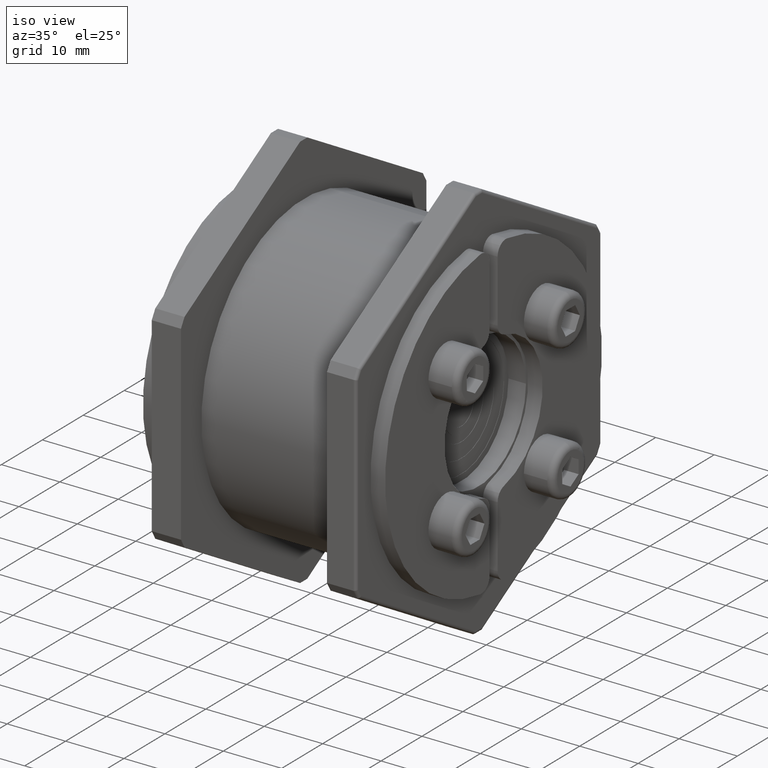
[diagram: clean part render]
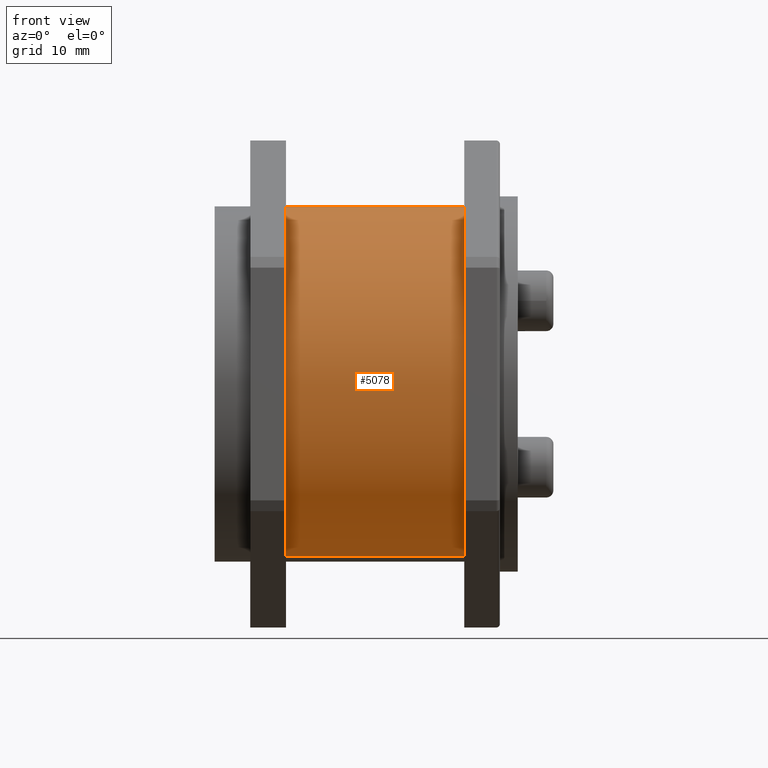
[diagram: tour spotlight — one face highlighted and labeled with its STEP entity id]
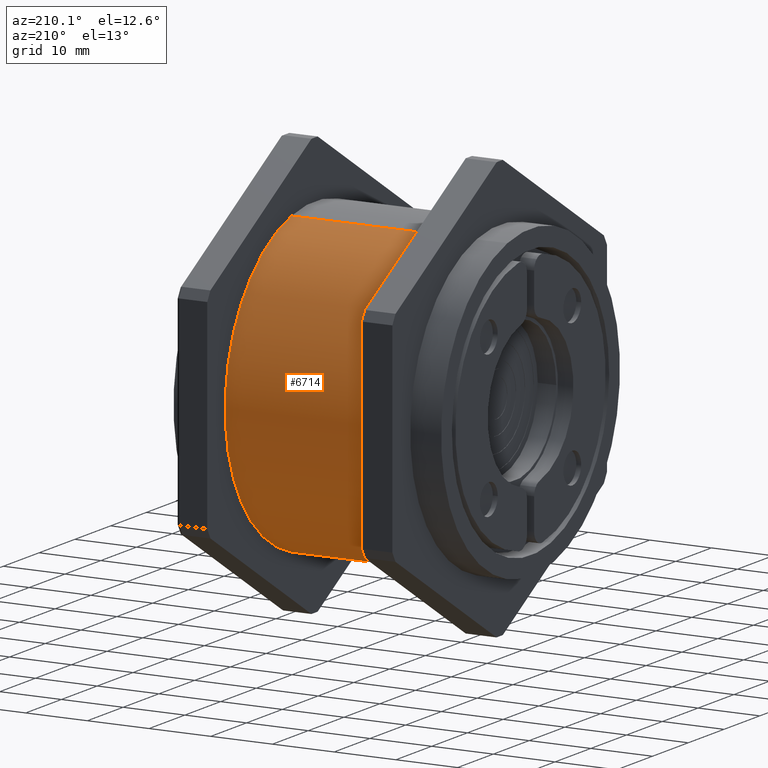
[diagram: tour spotlight — one face highlighted and labeled with its STEP entity id]
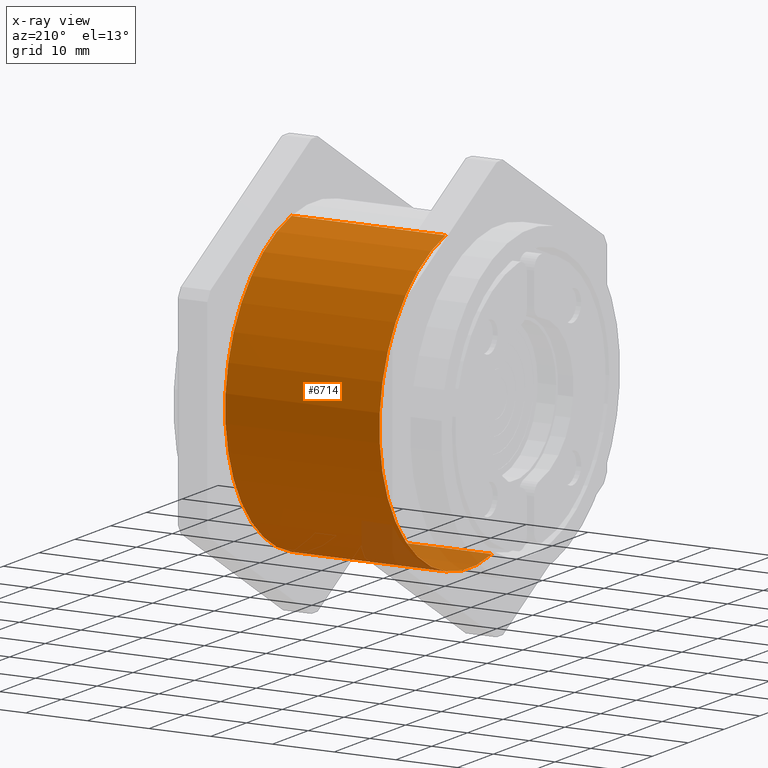
[diagram: x-ray of the same camera — body ghosted, this tour face saturated]
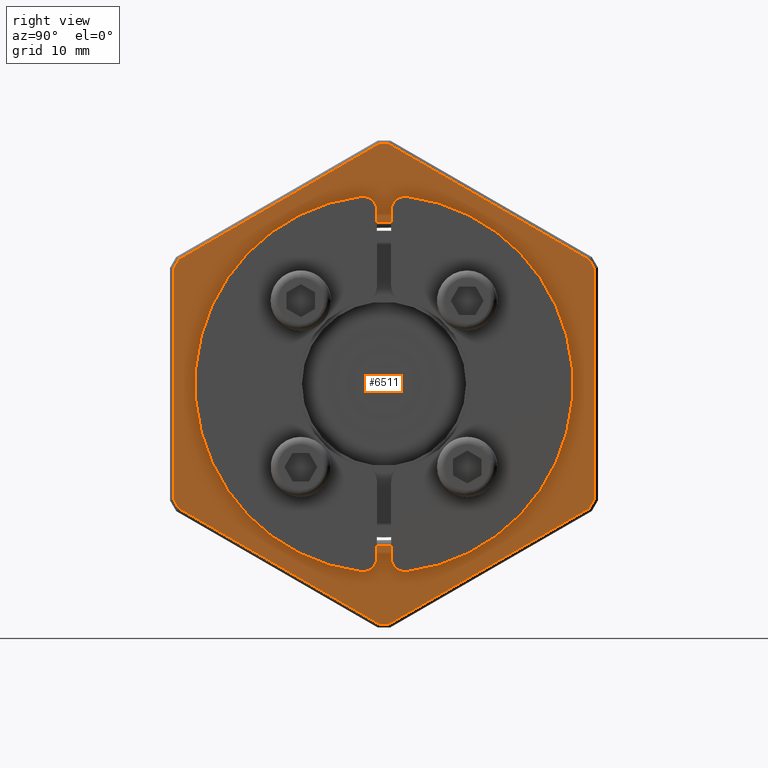
[diagram: tour spotlight — one face highlighted and labeled with its STEP entity id]
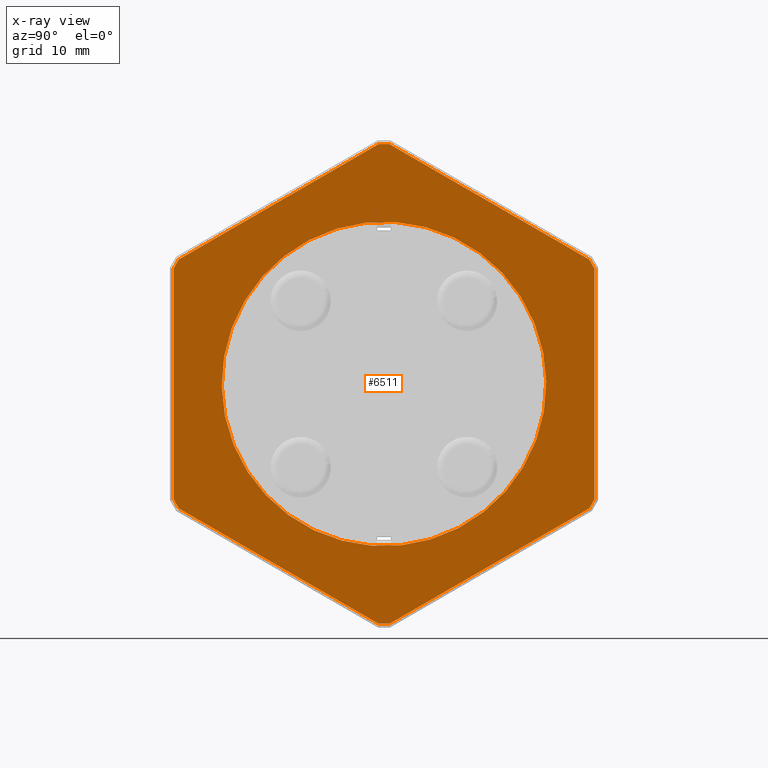
[diagram: x-ray of the same camera — body ghosted, this tour face saturated]
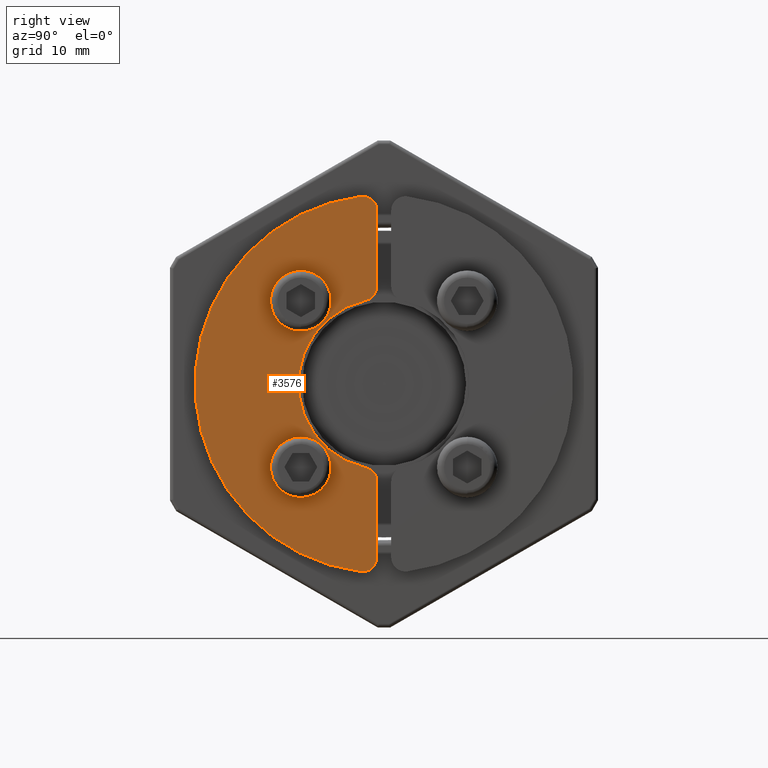
[diagram: tour spotlight — one face highlighted and labeled with its STEP entity id]
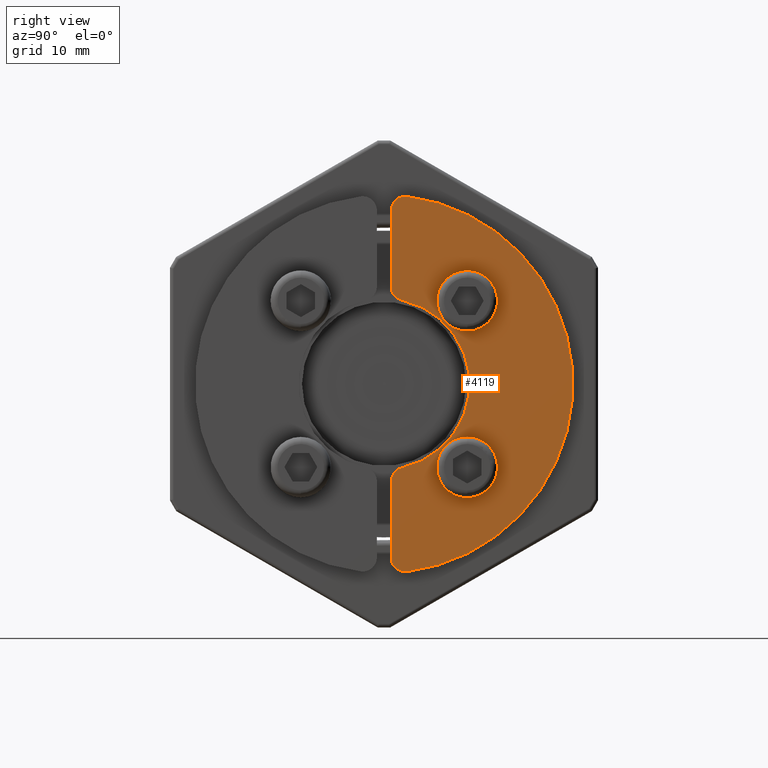
[diagram: tour spotlight — one face highlighted and labeled with its STEP entity id]
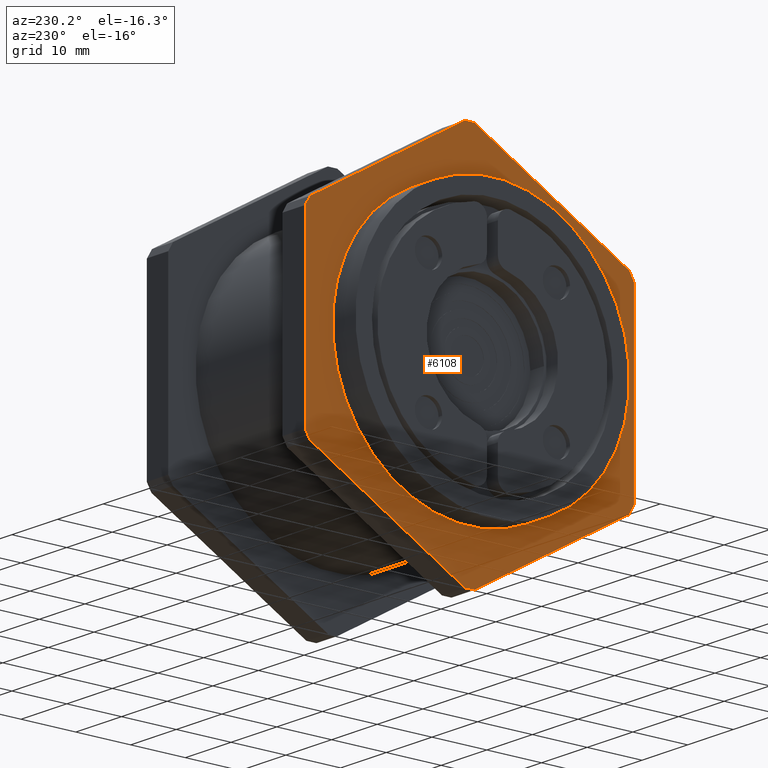
[diagram: tour spotlight — one face highlighted and labeled with its STEP entity id]
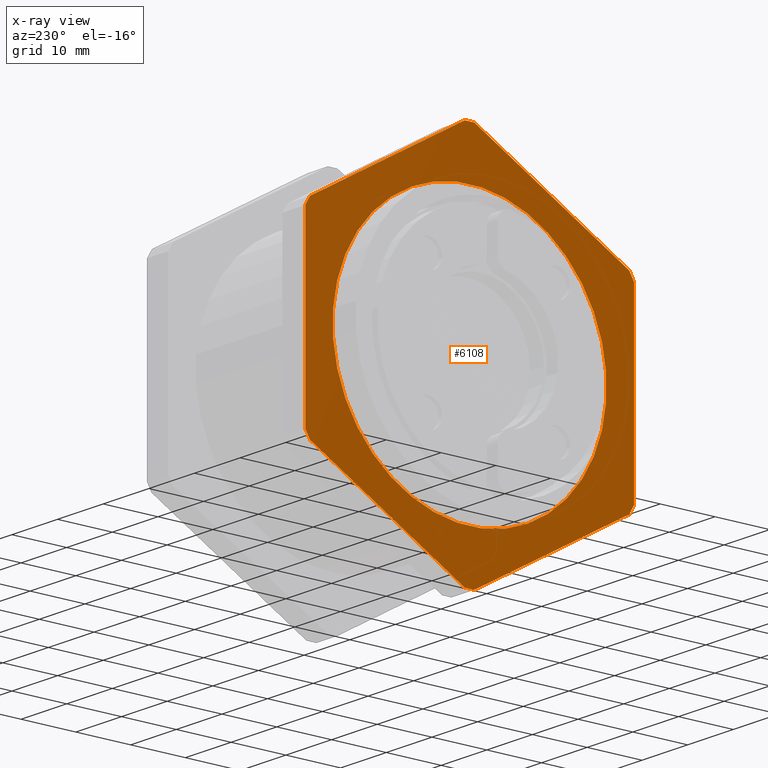
[diagram: x-ray of the same camera — body ghosted, this tour face saturated]
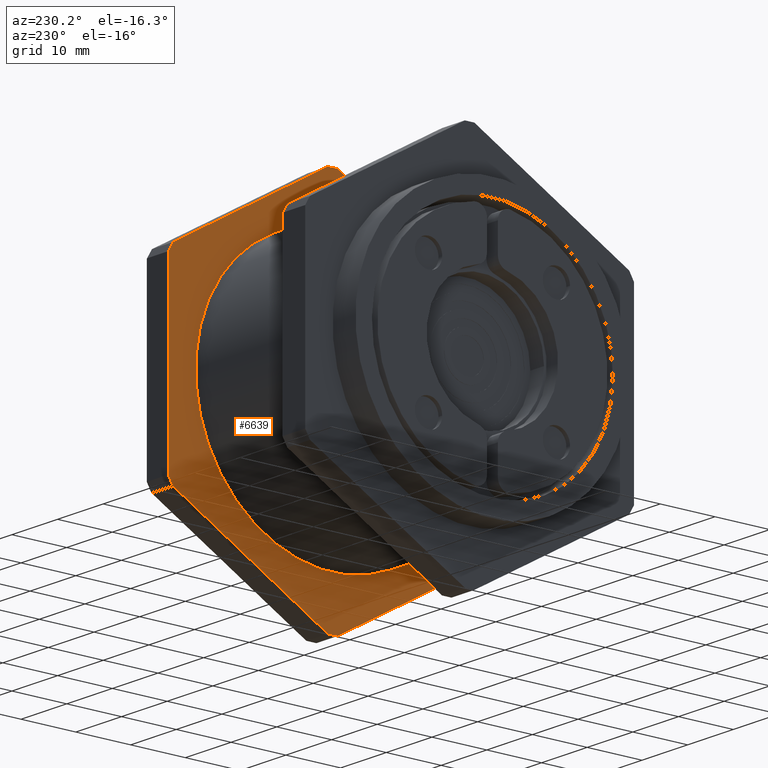
[diagram: tour spotlight — one face highlighted and labeled with its STEP entity id]
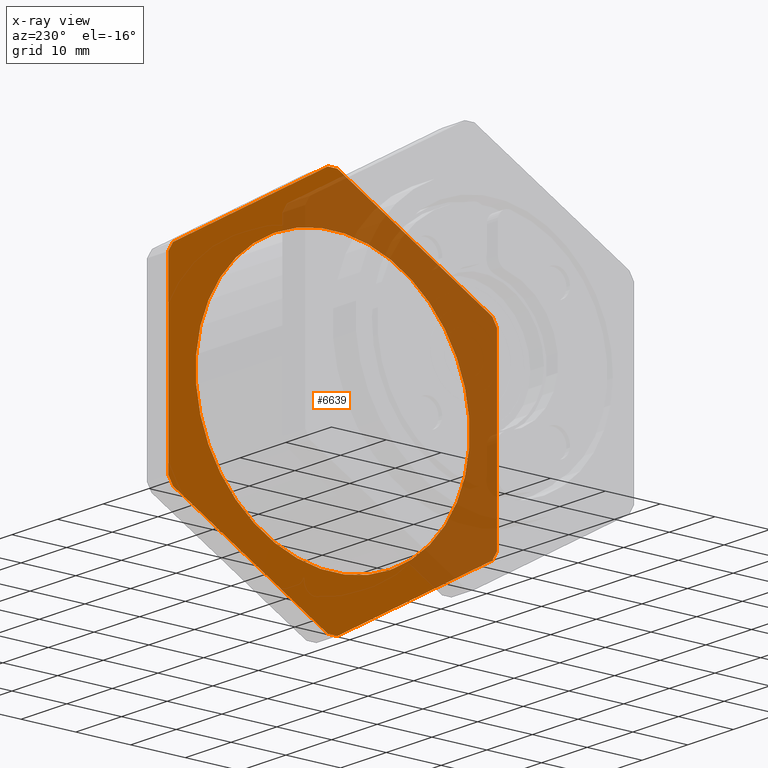
[diagram: x-ray of the same camera — body ghosted, this tour face saturated]
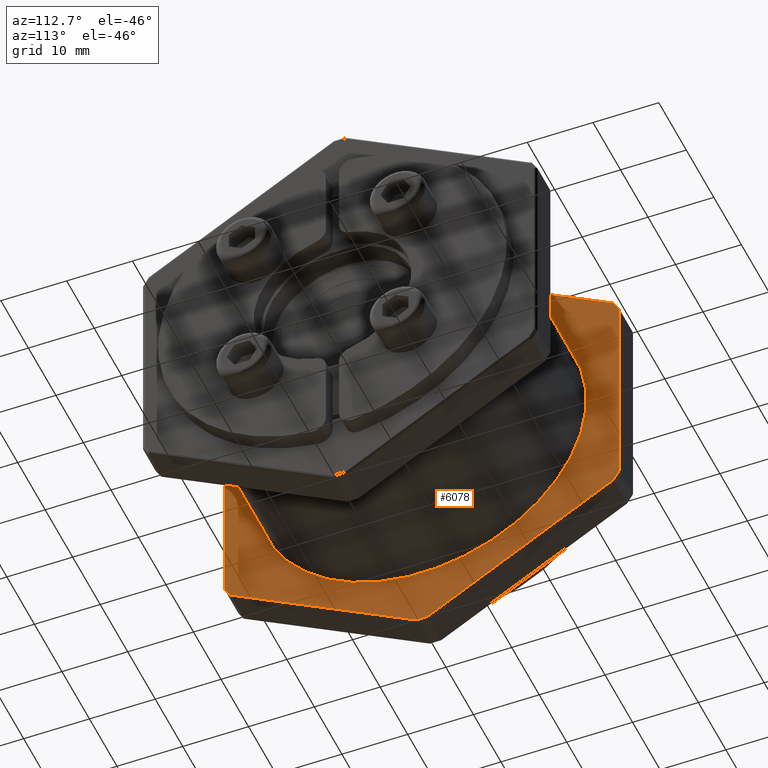
[diagram: tour spotlight — one face highlighted and labeled with its STEP entity id]
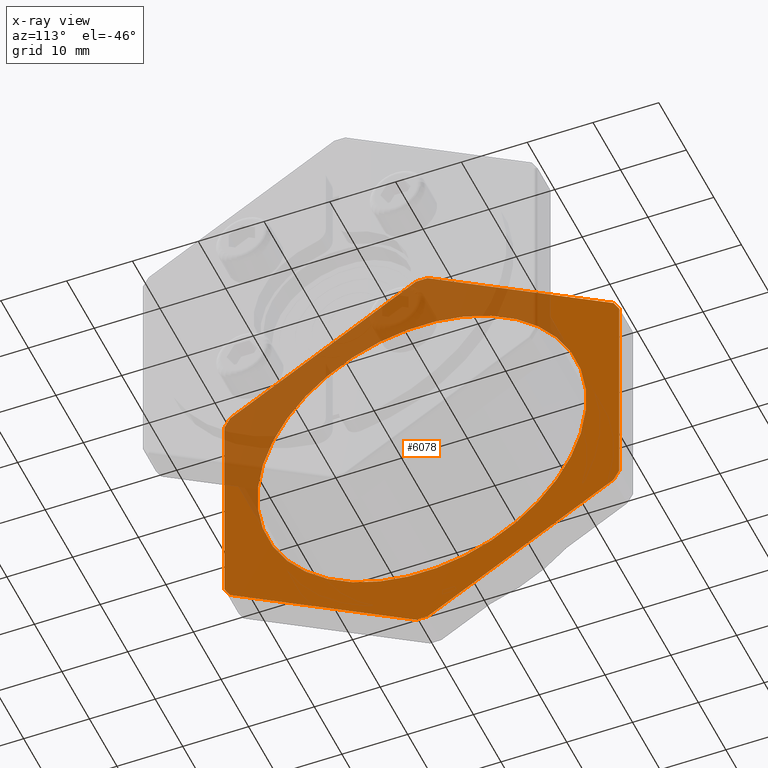
[diagram: x-ray of the same camera — body ghosted, this tour face saturated]
A machine part: a face-by-face anatomy tour. The part has 227 B-rep faces; the first image is the clean iso view, then the 8 largest visible faces are spotlighted one at a time (largest first), each with its STEP entity span.

Face 1 — front view, entity #5078. In plain terms, the highlighted cylindrical surface (partial cylindrical patch) has radius 25 mm, axis along (-1, 0, 0).
Definition (entity closure, byte-faithful):
#5037=CARTESIAN_POINT('',(0.0,0.0,5.0));
#5038=DIRECTION('',(0.0,0.0,1.0));
#5039=DIRECTION('',(-1.0,0.0,0.0));
#5040=AXIS2_PLACEMENT_3D('',#5037,#5038,#5039);
#5041=CYLINDRICAL_SURFACE('',#5040,25.0);
#5042=CARTESIAN_POINT('',(-25.0,3.061516E-015,5.0));
#5043=VERTEX_POINT('',#5042);
#5044=CARTESIAN_POINT('',(-25.0,3.061516E-015,30.0));
#5045=VERTEX_POINT('',#5044);
#5046=CARTESIAN_POINT('',(-25.0,3.061516E-015,5.0));
#5047=DIRECTION('',(0.0,0.0,1.0));
#5048=VECTOR('',#5047,25.0);
#5049=LINE('',#5046,#5048);
#5050=EDGE_CURVE('',#5043,#5045,#5049,.T.);
#5051=ORIENTED_EDGE('',*,*,#5050,.F.);
#5052=CARTESIAN_POINT('',(25.0,3.061516E-015,5.0));
#5053=VERTEX_POINT('',#5052);
#5054=CARTESIAN_POINT('',(0.0,0.0,5.0));
#5055=DIRECTION('',(0.0,0.0,-1.0));
#5056=DIRECTION('',(-1.0,0.0,0.0));
#5057=AXIS2_PLACEMENT_3D('',#5054,#5055,#5056);
#5058=CIRCLE('',#5057,25.0);
#5059=EDGE_CURVE('',#5053,#5043,#5058,.T.);
#5060=ORIENTED_EDGE('',*,*,#5059,.F.);
#5061=CARTESIAN_POINT('',(25.0,3.061516E-015,30.0));
#5062=VERTEX_POINT('',#5061);
#5063=CARTESIAN_POINT('',(25.0,3.061516E-015,30.0));
#5064=DIRECTION('',(0.0,0.0,-1.0));
#5065=VECTOR('',#5064,25.0);
#5066=LINE('',#5063,#5065);
#5067=EDGE_CURVE('',#5062,#5053,#5066,.T.);
#5068=ORIENTED_EDGE('',*,*,#5067,.F.);
#5069=CARTESIAN_POINT('',(0.0,0.0,30.0));
#5070=DIRECTION('',(0.0,0.0,-1.0));
#5071=DIRECTION('',(-1.0,0.0,0.0));
#5072=AXIS2_PLACEMENT_3D('',#5069,#5070,#5071);
#5073=CIRCLE('',#5072,25.0);
#5074=EDGE_CURVE('',#5062,#5045,#5073,.T.);
#5075=ORIENTED_EDGE('',*,*,#5074,.T.);
#5076=EDGE_LOOP('',(#5051,#5060,#5068,#5075));
#5077=FACE_OUTER_BOUND('',#5076,.T.);
#5078=ADVANCED_FACE('',(#5077),#5041,.T.);

Face 2 — auxiliary view, entity #6714. An x-ray twin of the same camera follows (body ghosted, this face saturated) — the face is partly hidden behind the body. In plain terms, the highlighted cylindrical surface (partial cylindrical patch) has radius 25 mm, axis along (-1, 0, 0).
Definition (entity closure, byte-faithful):
#5042=CARTESIAN_POINT('',(-25.0,3.061516E-015,5.0));
#5043=VERTEX_POINT('',#5042);
#5044=CARTESIAN_POINT('',(-25.0,3.061516E-015,30.0));
#5045=VERTEX_POINT('',#5044);
#5046=CARTESIAN_POINT('',(-25.0,3.061516E-015,5.0));
#5047=DIRECTION('',(0.0,0.0,1.0));
#5048=VECTOR('',#5047,25.0);
#5049=LINE('',#5046,#5048);
#5050=EDGE_CURVE('',#5043,#5045,#5049,.T.);
#5052=CARTESIAN_POINT('',(25.0,3.061516E-015,5.0));
#5053=VERTEX_POINT('',#5052);
#5061=CARTESIAN_POINT('',(25.0,3.061516E-015,30.0));
#5062=VERTEX_POINT('',#5061);
#5063=CARTESIAN_POINT('',(25.0,3.061516E-015,30.0));
#5064=DIRECTION('',(0.0,0.0,-1.0));
#5065=VECTOR('',#5064,25.0);
#5066=LINE('',#5063,#5065);
#5067=EDGE_CURVE('',#5062,#5053,#5066,.T.);
#6069=CARTESIAN_POINT('',(0.0,0.0,30.0));
#6070=DIRECTION('',(0.0,0.0,-1.0));
#6071=DIRECTION('',(-1.0,0.0,0.0));
#6072=AXIS2_PLACEMENT_3D('',#6069,#6070,#6071);
#6073=CIRCLE('',#6072,25.0);
#6074=EDGE_CURVE('',#5045,#5062,#6073,.T.);
#6630=CARTESIAN_POINT('',(0.0,0.0,5.0));
#6631=DIRECTION('',(0.0,0.0,-1.0));
#6632=DIRECTION('',(-1.0,0.0,0.0));
#6633=AXIS2_PLACEMENT_3D('',#6630,#6631,#6632);
#6634=CIRCLE('',#6633,25.0);
#6635=EDGE_CURVE('',#5043,#5053,#6634,.T.);
#6703=CARTESIAN_POINT('',(0.0,0.0,5.0));
#6704=DIRECTION('',(0.0,0.0,1.0));
#6705=DIRECTION('',(-1.0,0.0,0.0));
#6706=AXIS2_PLACEMENT_3D('',#6703,#6704,#6705);
#6707=CYLINDRICAL_SURFACE('',#6706,25.0);
#6708=ORIENTED_EDGE('',*,*,#5050,.T.);
#6709=ORIENTED_EDGE('',*,*,#6074,.T.);
#6710=ORIENTED_EDGE('',*,*,#5067,.T.);
#6711=ORIENTED_EDGE('',*,*,#6635,.F.);
#6712=EDGE_LOOP('',(#6708,#6709,#6710,#6711));
#6713=FACE_OUTER_BOUND('',#6712,.T.);
#6714=ADVANCED_FACE('',(#6713),#6707,.T.);

Face 3 — right view, entity #6511. An x-ray twin of the same camera follows (body ghosted, this face saturated) — the face is partly hidden behind the body. In plain terms, the highlighted planar face has unit normal (-1, 0, 0).
Definition (entity closure, byte-faithful):
#5126=CARTESIAN_POINT('',(22.750000000000004,-2.785979E-015,0.0));
#5127=VERTEX_POINT('',#5126);
#5136=CARTESIAN_POINT('',(-22.750000000000004,2.785979E-015,0.0));
#5137=VERTEX_POINT('',#5136);
#5145=CARTESIAN_POINT('',(0.0,0.0,0.0));
#5146=DIRECTION('',(0.0,0.0,-1.0));
#5147=DIRECTION('',(-1.0,0.0,0.0));
#5148=AXIS2_PLACEMENT_3D('',#5145,#5146,#5147);
#5149=CIRCLE('',#5148,22.750000000000004);
#5150=EDGE_CURVE('',#5137,#5127,#5149,.T.);
#5170=CARTESIAN_POINT('',(7.999829444458416,-32.684194516768883,0.0));
#5171=VERTEX_POINT('',#5170);
#5179=CARTESIAN_POINT('',(9.414042999407240,-32.305257107098228,0.0));
#5180=VERTEX_POINT('',#5179);
#5181=CARTESIAN_POINT('',(7.999829444458416,-32.684194516768883,0.0));
#5182=DIRECTION('',(0.965925821218216,0.258819064027198,0.0));
#5183=VECTOR('',#5182,1.464101615137726);
#5184=LINE('',#5181,#5183);
#5185=EDGE_CURVE('',#5171,#5180,#5184,.T.);
#5250=CARTESIAN_POINT('',(-24.305428372225780,-23.270152691937604,0.0));
#5251=VERTEX_POINT('',#5250);
#5259=CARTESIAN_POINT('',(-23.270152171532281,-24.305428852064281,0.0));
#5260=VERTEX_POINT('',#5259);
#5261=CARTESIAN_POINT('',(-24.305428372225780,-23.270152691937604,0.0));
#5262=DIRECTION('',(0.707106795040374,-0.707106767332720,0.0));
#5263=VECTOR('',#5262,1.464101615137762);
#5264=LINE('',#5261,#5263);
#5265=EDGE_CURVE('',#5251,#5260,#5264,.T.);
#5330=CARTESIAN_POINT('',(-32.305257907974763,9.414042165532338,0.0));
#5331=VERTEX_POINT('',#5330);
#5339=CARTESIAN_POINT('',(-32.684195262230126,7.999828595734990,0.0));
#5340=VERTEX_POINT('',#5339);
#5341=CARTESIAN_POINT('',(-32.305257907974763,9.414042165532338,0.0));
#5342=DIRECTION('',(-0.258819026177843,-0.965925831359920,0.0));
#5343=VECTOR('',#5342,1.464101615137766);
#5344=LINE('',#5341,#5343);
#5345=EDGE_CURVE('',#5331,#5340,#5344,.T.);
#5410=CARTESIAN_POINT('',(-7.999829627039593,32.684195198171018,0.0));
#5411=VERTEX_POINT('',#5410);
#5419=CARTESIAN_POINT('',(-9.414043181988443,32.305257788500356,0.0));
#5420=VERTEX_POINT('',#5419);
#5421=CARTESIAN_POINT('',(-7.999829627039593,32.684195198171018,0.0));
#5422=DIRECTION('',(-0.965925821218216,-0.258819064027198,0.0));
#5423=VECTOR('',#5422,1.464101615137753);
#5424=LINE('',#5421,#5423);
#5425=EDGE_CURVE('',#5411,#5420,#5424,.T.);
#5490=CARTESIAN_POINT('',(24.305428189644619,23.270153373339724,0.0));
#5491=VERTEX_POINT('',#5490);
#5499=CARTESIAN_POINT('',(23.270151988951106,24.305429533466409,0.0));
#5500=VERTEX_POINT('',#5499);
#5501=CARTESIAN_POINT('',(24.305428189644619,23.270153373339724,0.0));
#5502=DIRECTION('',(-0.707106795040377,0.707106767332718,0.0));
#5503=VECTOR('',#5502,1.464101615137777);
#5504=LINE('',#5501,#5503);
#5505=EDGE_CURVE('',#5491,#5500,#5504,.T.);
#5570=CARTESIAN_POINT('',(32.305257725393588,-9.414041484130220,0.0));
#5571=VERTEX_POINT('',#5570);
#5579=CARTESIAN_POINT('',(32.684195079648944,-7.999827914332871,0.0));
#5580=VERTEX_POINT('',#5579);
#5581=CARTESIAN_POINT('',(32.305257725393588,-9.414041484130220,0.0));
#5582=DIRECTION('',(0.258819026177838,0.965925831359922,0.0));
#5583=VECTOR('',#5582,1.464101615137764);
#5584=LINE('',#5581,#5583);
#5585=EDGE_CURVE('',#5571,#5580,#5584,.T.);
#6134=CARTESIAN_POINT('',(9.414042999407240,-32.305257107098228,0.0));
#6135=DIRECTION('',(0.707106767332722,0.707106795040373,0.0));
#6136=VECTOR('',#6135,32.373066958946424);
#6137=LINE('',#6134,#6136);
#6138=EDGE_CURVE('',#5180,#5571,#6137,.T.);
#6168=CARTESIAN_POINT('',(32.684195079648944,-7.999827914332871,0.0));
#6169=DIRECTION('',(-0.258819064027198,0.965925821218216,0.0));
#6170=VECTOR('',#6169,32.373066958946396);
#6171=LINE('',#6168,#6170);
#6172=EDGE_CURVE('',#5580,#5491,#6171,.T.);
#6202=CARTESIAN_POINT('',(23.270151988951106,24.305429533466409,0.0));
#6203=DIRECTION('',(-0.965925831359920,0.258819026177843,0.0));
#6204=VECTOR('',#6203,32.373066958946431);
#6205=LINE('',#6202,#6204);
#6206=EDGE_CURVE('',#5500,#5411,#6205,.T.);
#6236=CARTESIAN_POINT('',(-9.414043181988443,32.305257788500356,0.0));
#6237=DIRECTION('',(-0.707106767332721,-0.707106795040374,0.0));
#6238=VECTOR('',#6237,32.373066958946417);
#6239=LINE('',#6236,#6238);
#6240=EDGE_CURVE('',#5420,#5331,#6239,.T.);
#6270=CARTESIAN_POINT('',(-32.684195262230126,7.999828595734990,0.0));
#6271=DIRECTION('',(0.258819064027199,-0.965925821218216,0.0));
#6272=VECTOR('',#6271,32.373066958946403);
#6273=LINE('',#6270,#6272);
#6274=EDGE_CURVE('',#5340,#5251,#6273,.T.);
#6304=CARTESIAN_POINT('',(-23.270152171532281,-24.305428852064281,0.0));
#6305=DIRECTION('',(0.965925831359920,-0.258819026177842,0.0));
#6306=VECTOR('',#6305,32.373066958946431);
#6307=LINE('',#6304,#6306);
#6308=EDGE_CURVE('',#5260,#5171,#6307,.T.);
#6482=CARTESIAN_POINT('',(-0.000000091290589,0.000000340701068,0.0));
#6483=DIRECTION('',(0.0,0.0,1.0));
#6484=DIRECTION('',(1.0,0.0,0.0));
#6485=AXIS2_PLACEMENT_3D('',#6482,#6483,#6484);
#6486=PLANE('',#6485);
#6487=ORIENTED_EDGE('',*,*,#6138,.F.);
#6488=ORIENTED_EDGE('',*,*,#5185,.F.);
#6489=ORIENTED_EDGE('',*,*,#6308,.F.);
#6490=ORIENTED_EDGE('',*,*,#5265,.F.);
#6491=ORIENTED_EDGE('',*,*,#6274,.F.);
#6492=ORIENTED_EDGE('',*,*,#5345,.F.);
#6493=ORIENTED_EDGE('',*,*,#6240,.F.);
#6494=ORIENTED_EDGE('',*,*,#5425,.F.);
#6495=ORIENTED_EDGE('',*,*,#6206,.F.);
#6496=ORIENTED_EDGE('',*,*,#5505,.F.);
#6497=ORIENTED_EDGE('',*,*,#6172,.F.);
#6498=ORIENTED_EDGE('',*,*,#5585,.F.);
#6499=EDGE_LOOP('',(#6487,#6488,#6489,#6490,#6491,#6492,#6493,#6494,#6495,#6496,#6497,#6498));
#6500=FACE_OUTER_BOUND('',#6499,.T.);
#6501=CARTESIAN_POINT('',(0.0,0.0,0.0));
#6502=DIRECTION('',(0.0,0.0,-1.0));
#6503=DIRECTION('',(-1.0,0.0,0.0));
#6504=AXIS2_PLACEMENT_3D('',#6501,#6502,#6503);
#6505=CIRCLE('',#6504,22.750000000000004);
#6506=EDGE_CURVE('',#5127,#5137,#6505,.T.);
#6507=ORIENTED_EDGE('',*,*,#6506,.F.);
#6508=ORIENTED_EDGE('',*,*,#5150,.F.);
#6509=EDGE_LOOP('',(#6507,#6508));
#6510=FACE_BOUND('',#6509,.T.);
#6511=ADVANCED_FACE('',(#6500,#6510),#6486,.F.);

Face 4 — right view, entity #3576. In plain terms, the highlighted planar face has unit normal (1, 0, 0).
Definition (entity closure, byte-faithful):
#1158=CARTESIAN_POINT('',(21.250000000000000,-1.675197357786332,-25.813931186104444));
#1159=VERTEX_POINT('',#1158);
#1175=CARTESIAN_POINT('',(21.250000000000000,-1.000000000000003,-24.315632831575655));
#1176=VERTEX_POINT('',#1175);
#1183=CARTESIAN_POINT('',(21.250000000000000,-3.000000000000003,-24.315632831575655));
#1184=DIRECTION('',(-1.0,0.0,0.0));
#1185=DIRECTION('',(0.0,0.662401321106836,-0.749149177264394));
#1186=AXIS2_PLACEMENT_3D('',#1183,#1184,#1185);
#1187=CIRCLE('',#1186,2.0);
#1188=EDGE_CURVE('',#1176,#1159,#1187,.T.);
#1200=CARTESIAN_POINT('',(21.250000000000000,-1.675197357786327,25.813931186104448));
#1201=VERTEX_POINT('',#1200);
#1217=CARTESIAN_POINT('',(21.250000000000000,-3.244897959183671,26.300582450479798));
#1218=VERTEX_POINT('',#1217);
#1225=CARTESIAN_POINT('',(21.250000000000000,-2.999999999999998,24.315632831575659));
#1226=DIRECTION('',(-1.0,0.0,0.0));
#1227=DIRECTION('',(0.0,0.662401321106836,0.749149177264394));
#1228=AXIS2_PLACEMENT_3D('',#1225,#1226,#1227);
#1229=CIRCLE('',#1228,2.0);
#1230=EDGE_CURVE('',#1218,#1201,#1229,.T.);
#1242=CARTESIAN_POINT('',(21.250000000000000,-1.441612555052040,12.421227990121327));
#1243=VERTEX_POINT('',#1242);
#1259=CARTESIAN_POINT('',(21.250000000000000,-0.999999999999998,13.674794331177340));
#1260=VERTEX_POINT('',#1259);
#1267=CARTESIAN_POINT('',(21.250000000000000,-3.000000000000002,13.674794331177342));
#1268=DIRECTION('',(-1.000000000000000,0.0,0.0));
#1269=DIRECTION('',(0.0,0.779193722473981,-0.626783170528008));
#1270=AXIS2_PLACEMENT_3D('',#1267,#1268,#1269);
#1271=CIRCLE('',#1270,2.0);
#1272=EDGE_CURVE('',#1260,#1243,#1271,.T.);
#1284=CARTESIAN_POINT('',(21.250000000000000,-1.441612555052043,-12.421227990121329));
#1285=VERTEX_POINT('',#1284);
#1301=CARTESIAN_POINT('',(21.250000000000000,-2.571428571428573,-11.721252283866296));
#1302=VERTEX_POINT('',#1301);
#1309=CARTESIAN_POINT('',(21.250000000000000,-3.000000000000002,-13.674794331177345));
#1310=DIRECTION('',(-1.000000000000000,0.0,0.0));
#1311=DIRECTION('',(0.0,0.779193722473980,0.626783170528009));
#1312=AXIS2_PLACEMENT_3D('',#1309,#1310,#1311);
#1313=CIRCLE('',#1312,2.000000000000000);
#1314=EDGE_CURVE('',#1302,#1285,#1313,.T.);
#1742=CARTESIAN_POINT('',(21.250000000000000,-15.917261889578032,11.667261889578040));
#1743=VERTEX_POINT('',#1742);
#1752=CARTESIAN_POINT('',(21.250000000000000,-7.417261889578033,11.667261889578038));
#1753=VERTEX_POINT('',#1752);
#1754=CARTESIAN_POINT('',(21.250000000000000,-11.667261889578032,11.667261889578038));
#1755=DIRECTION('',(-1.0,0.0,0.0));
#1756=DIRECTION('',(0.0,-1.0,0.0));
#1757=AXIS2_PLACEMENT_3D('',#1754,#1755,#1756);
#1758=CIRCLE('',#1757,4.250000000000000);
#1759=EDGE_CURVE('',#1753,#1743,#1758,.T.);
#1845=CARTESIAN_POINT('',(21.250000000000000,-11.667261889578040,-15.917261889578032));
#1846=VERTEX_POINT('',#1845);
#1855=CARTESIAN_POINT('',(21.250000000000000,-11.667261889578036,-7.417261889578034));
#1856=VERTEX_POINT('',#1855);
#1857=CARTESIAN_POINT('',(21.250000000000000,-11.667261889578038,-11.667261889578032));
#1858=DIRECTION('',(-1.0,0.0,0.0));
#1859=DIRECTION('',(0.0,0.0,-1.0));
#1860=AXIS2_PLACEMENT_3D('',#1857,#1858,#1859);
#1861=CIRCLE('',#1860,4.250000000000000);
#1862=EDGE_CURVE('',#1856,#1846,#1861,.T.);
#2156=CARTESIAN_POINT('',(21.250000000000000,-11.667261889578038,-11.667261889578032));
#2157=DIRECTION('',(-1.0,0.0,0.0));
#2158=DIRECTION('',(0.0,0.0,-1.0));
#2159=AXIS2_PLACEMENT_3D('',#2156,#2157,#2158);
#2160=CIRCLE('',#2159,4.250000000000000);
#2161=EDGE_CURVE('',#1846,#1856,#2160,.T.);
#2260=CARTESIAN_POINT('',(21.250000000000000,-11.667261889578032,11.667261889578038));
#2261=DIRECTION('',(-1.0,0.0,0.0));
#2262=DIRECTION('',(0.0,-1.0,0.0));
#2263=AXIS2_PLACEMENT_3D('',#2260,#2261,#2262);
#2264=CIRCLE('',#2263,4.250000000000000);
#2265=EDGE_CURVE('',#1743,#1753,#2264,.T.);
#3453=CARTESIAN_POINT('',(21.250000000000000,-1.000000000000002,-13.674794331177345));
#3454=VERTEX_POINT('',#3453);
#3455=CARTESIAN_POINT('',(21.250000000000000,-3.000000000000002,-13.674794331177345));
#3456=DIRECTION('',(-1.000000000000000,0.0,0.0));
#3457=DIRECTION('',(0.0,0.779193722473980,0.626783170528009));
#3458=AXIS2_PLACEMENT_3D('',#3455,#3456,#3457);
#3459=CIRCLE('',#3458,2.000000000000000);
#3460=EDGE_CURVE('',#1285,#3454,#3459,.T.);
#3486=CARTESIAN_POINT('',(21.250000000000000,-1.000000000000002,-13.674794331177345));
#3487=DIRECTION('',(0.0,0.0,-1.0));
#3488=VECTOR('',#3487,10.640838500398310);
#3489=LINE('',#3486,#3488);
#3490=EDGE_CURVE('',#3454,#1176,#3489,.T.);
#3508=CARTESIAN_POINT('',(21.250000000000000,-10.716555633308184,1.312356E-015));
#3509=DIRECTION('',(1.0,0.0,0.0));
#3510=DIRECTION('',(0.0,0.0,1.0));
#3511=AXIS2_PLACEMENT_3D('',#3508,#3509,#3510);
#3512=PLANE('',#3511);
#3513=ORIENTED_EDGE('',*,*,#1314,.F.);
#3514=CARTESIAN_POINT('',(21.250000000000000,-2.571428571428573,11.721252283866296));
#3515=VERTEX_POINT('',#3514);
#3516=CARTESIAN_POINT('',(21.250000000000000,0.0,0.0));
#3517=DIRECTION('',(1.000000000000000,0.0,0.0));
#3518=DIRECTION('',(0.0,0.083333333333333,-0.996521728591783));
#3519=AXIS2_PLACEMENT_3D('',#3516,#3517,#3518);
#3520=CIRCLE('',#3519,12.0);
#3521=EDGE_CURVE('',#3515,#1302,#3520,.T.);
#3522=ORIENTED_EDGE('',*,*,#3521,.F.);
#3523=CARTESIAN_POINT('',(21.250000000000000,-3.000000000000002,13.674794331177342));
#3524=DIRECTION('',(-1.000000000000000,0.0,0.0));
#3525=DIRECTION('',(0.0,0.779193722473981,-0.626783170528008));
#3526=AXIS2_PLACEMENT_3D('',#3523,#3524,#3525);
#3527=CIRCLE('',#3526,2.0);
#3528=EDGE_CURVE('',#1243,#3515,#3527,.T.);
#3529=ORIENTED_EDGE('',*,*,#3528,.F.);
#3530=ORIENTED_EDGE('',*,*,#1272,.F.);
#3531=CARTESIAN_POINT('',(21.250000000000000,-0.999999999999997,24.315632831575662));
#3532=VERTEX_POINT('',#3531);
#3533=CARTESIAN_POINT('',(21.250000000000000,-0.999999999999997,24.315632831575662));
#3534=DIRECTION('',(0.0,0.0,-1.0));
#3535=VECTOR('',#3534,10.640838500398322);
#3536=LINE('',#3533,#3535);
#3537=EDGE_CURVE('',#3532,#1260,#3536,.T.);
#3538=ORIENTED_EDGE('',*,*,#3537,.F.);
#3539=CARTESIAN_POINT('',(21.250000000000000,-2.999999999999998,24.315632831575659));
#3540=DIRECTION('',(-1.0,0.0,0.0));
#3541=DIRECTION('',(0.0,0.662401321106836,0.749149177264394));
#3542=AXIS2_PLACEMENT_3D('',#3539,#3540,#3541);
#3543=CIRCLE('',#3542,2.0);
#3544=EDGE_CURVE('',#1201,#3532,#3543,.T.);
#3545=ORIENTED_EDGE('',*,*,#3544,.F.);
#3546=ORIENTED_EDGE('',*,*,#1230,.F.);
#3547=CARTESIAN_POINT('',(21.250000000000000,-3.244897959183678,-26.300582450479794));
#3548=VERTEX_POINT('',#3547);
#3549=CARTESIAN_POINT('',(21.250000000000000,0.0,0.0));
#3550=DIRECTION('',(-1.0,0.0,0.0));
#3551=DIRECTION('',(0.0,-0.037735849056604,0.999287749197386));
#3552=AXIS2_PLACEMENT_3D('',#3549,#3550,#3551);
#3553=CIRCLE('',#3552,26.500000000000004);
#3554=EDGE_CURVE('',#3548,#1218,#3553,.T.);
#3555=ORIENTED_EDGE('',*,*,#3554,.F.);
#3556=CARTESIAN_POINT('',(21.250000000000000,-3.000000000000003,-24.315632831575655));
#3557=DIRECTION('',(-1.0,0.0,0.0));
#3558=DIRECTION('',(0.0,0.662401321106836,-0.749149177264394));
#3559=AXIS2_PLACEMENT_3D('',#3556,#3557,#3558);
#3560=CIRCLE('',#3559,2.0);
#3561=EDGE_CURVE('',#1159,#3548,#3560,.T.);
#3562=ORIENTED_EDGE('',*,*,#3561,.F.);
#3563=ORIENTED_EDGE('',*,*,#1188,.F.);
#3564=ORIENTED_EDGE('',*,*,#3490,.F.);
#3565=ORIENTED_EDGE('',*,*,#3460,.F.);
#3566=EDGE_LOOP('',(#3513,#3522,#3529,#3530,#3538,#3545,#3546,#3555,#3562,#3563,#3564,#3565));
#3567=FACE_OUTER_BOUND('',#3566,.T.);
#3568=ORIENTED_EDGE('',*,*,#1862,.T.);
#3569=ORIENTED_EDGE('',*,*,#2161,.T.);
#3570=EDGE_LOOP('',(#3568,#3569));
#3571=FACE_BOUND('',#3570,.T.);
#3572=ORIENTED_EDGE('',*,*,#1759,.T.);
#3573=ORIENTED_EDGE('',*,*,#2265,.T.);
#3574=EDGE_LOOP('',(#3572,#3573));
#3575=FACE_BOUND('',#3574,.T.);
#3576=ADVANCED_FACE('',(#3567,#3571,#3575),#3512,.T.);

Face 5 — right view, entity #4119. In plain terms, the highlighted planar face has unit normal (1, 0, 0).
Definition (entity closure, byte-faithful):
#822=CARTESIAN_POINT('',(21.250000000000000,1.675197357786330,25.813931186104448));
#823=VERTEX_POINT('',#822);
#839=CARTESIAN_POINT('',(21.250000000000000,1.0,24.315632831575659));
#840=VERTEX_POINT('',#839);
#847=CARTESIAN_POINT('',(21.250000000000000,3.000000000000000,24.315632831575659));
#848=DIRECTION('',(-1.0,0.0,0.0));
#849=DIRECTION('',(0.0,-0.662401321106836,0.749149177264394));
#850=AXIS2_PLACEMENT_3D('',#847,#848,#849);
#851=CIRCLE('',#850,2.0);
#852=EDGE_CURVE('',#840,#823,#851,.T.);
#864=CARTESIAN_POINT('',(21.250000000000000,1.675197357786329,-25.813931186104448));
#865=VERTEX_POINT('',#864);
#881=CARTESIAN_POINT('',(21.250000000000000,3.244897959183674,-26.300582450479794));
#882=VERTEX_POINT('',#881);
#889=CARTESIAN_POINT('',(21.250000000000000,3.000000000000000,-24.315632831575659));
#890=DIRECTION('',(-1.0,0.0,0.0));
#891=DIRECTION('',(0.0,-0.662401321106836,-0.749149177264394));
#892=AXIS2_PLACEMENT_3D('',#889,#890,#891);
#893=CIRCLE('',#892,2.0);
#894=EDGE_CURVE('',#882,#865,#893,.T.);
#906=CARTESIAN_POINT('',(21.250000000000000,1.441612555052042,-12.421227990121325));
#907=VERTEX_POINT('',#906);
#923=CARTESIAN_POINT('',(21.250000000000000,1.0,-13.674794331177340));
#924=VERTEX_POINT('',#923);
#931=CARTESIAN_POINT('',(21.250000000000000,3.000000000000003,-13.674794331177342));
#932=DIRECTION('',(-1.000000000000000,0.0,0.0));
#933=DIRECTION('',(0.0,-0.779193722473980,0.626783170528008));
#934=AXIS2_PLACEMENT_3D('',#931,#932,#933);
#935=CIRCLE('',#934,2.0);
#936=EDGE_CURVE('',#924,#907,#935,.T.);
#948=CARTESIAN_POINT('',(21.250000000000000,1.441612555052040,12.421227990121327));
#949=VERTEX_POINT('',#948);
#965=CARTESIAN_POINT('',(21.250000000000000,2.571428571428572,11.721252283866296));
#966=VERTEX_POINT('',#965);
#973=CARTESIAN_POINT('',(21.250000000000000,3.000000000000000,13.674794331177345));
#974=DIRECTION('',(-1.000000000000000,0.0,0.0));
#975=DIRECTION('',(0.0,-0.779193722473979,-0.626783170528009));
#976=AXIS2_PLACEMENT_3D('',#973,#974,#975);
#977=CIRCLE('',#976,2.0);
#978=EDGE_CURVE('',#966,#949,#977,.T.);
#1534=CARTESIAN_POINT('',(21.250000000000000,11.667261889578036,15.917261889578036));
#1535=VERTEX_POINT('',#1534);
#1544=CARTESIAN_POINT('',(21.250000000000000,11.667261889578036,7.417261889578035));
#1545=VERTEX_POINT('',#1544);
#1546=CARTESIAN_POINT('',(21.250000000000000,11.667261889578036,11.667261889578036));
#1547=DIRECTION('',(-1.0,0.0,0.0));
#1548=DIRECTION('',(0.0,0.0,1.0));
#1549=AXIS2_PLACEMENT_3D('',#1546,#1547,#1548);
#1550=CIRCLE('',#1549,4.250000000000000);
#1551=EDGE_CURVE('',#1545,#1535,#1550,.T.);
#1921=CARTESIAN_POINT('',(21.250000000000000,15.917261889578032,-11.667261889578040));
#1922=VERTEX_POINT('',#1921);
#1931=CARTESIAN_POINT('',(21.250000000000000,7.417261889578033,-11.667261889578038));
#1932=VERTEX_POINT('',#1931);
#1933=CARTESIAN_POINT('',(21.250000000000000,11.667261889578032,-11.667261889578038));
#1934=DIRECTION('',(-1.0,0.0,0.0));
#1935=DIRECTION('',(0.0,1.0,0.0));
#1936=AXIS2_PLACEMENT_3D('',#1933,#1934,#1935);
#1937=CIRCLE('',#1936,4.250000000000000);
#1938=EDGE_CURVE('',#1932,#1922,#1937,.T.);
#2053=CARTESIAN_POINT('',(21.250000000000000,11.667261889578032,-11.667261889578038));
#2054=DIRECTION('',(-1.0,0.0,0.0));
#2055=DIRECTION('',(0.0,1.0,0.0));
#2056=AXIS2_PLACEMENT_3D('',#2053,#2054,#2055);
#2057=CIRCLE('',#2056,4.250000000000000);
#2058=EDGE_CURVE('',#1922,#1932,#2057,.T.);
#2933=CARTESIAN_POINT('',(21.250000000000000,11.667261889578036,11.667261889578036));
#2934=DIRECTION('',(-1.0,0.0,0.0));
#2935=DIRECTION('',(0.0,0.0,1.0));
#2936=AXIS2_PLACEMENT_3D('',#2933,#2934,#2935);
#2937=CIRCLE('',#2936,4.250000000000000);
#2938=EDGE_CURVE('',#1535,#1545,#2937,.T.);
#3994=CARTESIAN_POINT('',(21.250000000000000,1.0,13.674794331177345));
#3995=VERTEX_POINT('',#3994);
#3996=CARTESIAN_POINT('',(21.250000000000000,3.000000000000000,13.674794331177345));
#3997=DIRECTION('',(-1.000000000000000,0.0,0.0));
#3998=DIRECTION('',(0.0,-0.779193722473979,-0.626783170528009));
#3999=AXIS2_PLACEMENT_3D('',#3996,#3997,#3998);
#4000=CIRCLE('',#3999,2.0);
#4001=EDGE_CURVE('',#949,#3995,#4000,.T.);
#4027=CARTESIAN_POINT('',(21.250000000000000,1.0,13.674794331177345));
#4028=DIRECTION('',(0.0,0.0,1.0));
#4029=VECTOR('',#4028,10.640838500398313);
#4030=LINE('',#4027,#4029);
#4031=EDGE_CURVE('',#3995,#840,#4030,.T.);
#4051=CARTESIAN_POINT('',(21.250000000000000,10.716555633308184,0.0));
#4052=DIRECTION('',(1.0,0.0,0.0));
#4053=DIRECTION('',(0.0,0.0,-1.0));
#4054=AXIS2_PLACEMENT_3D('',#4051,#4052,#4053);
#4055=PLANE('',#4054);
#4056=ORIENTED_EDGE('',*,*,#978,.F.);
#4057=CARTESIAN_POINT('',(21.250000000000000,2.571428571428575,-11.721252283866296));
#4058=VERTEX_POINT('',#4057);
#4059=CARTESIAN_POINT('',(21.250000000000000,0.0,0.0));
#4060=DIRECTION('',(1.000000000000000,0.0,0.0));
#4061=DIRECTION('',(0.0,-0.083333333333333,0.996521728591783));
#4062=AXIS2_PLACEMENT_3D('',#4059,#4060,#4061);
#4063=CIRCLE('',#4062,12.0);
#4064=EDGE_CURVE('',#4058,#966,#4063,.T.);
#4065=ORIENTED_EDGE('',*,*,#4064,.F.);
#4066=CARTESIAN_POINT('',(21.250000000000000,3.000000000000003,-13.674794331177342));
#4067=DIRECTION('',(-1.000000000000000,0.0,0.0));
#4068=DIRECTION('',(0.0,-0.779193722473980,0.626783170528008));
#4069=AXIS2_PLACEMENT_3D('',#4066,#4067,#4068);
#4070=CIRCLE('',#4069,2.0);
#4071=EDGE_CURVE('',#907,#4058,#4070,.T.);
#4072=ORIENTED_EDGE('',*,*,#4071,.F.);
#4073=ORIENTED_EDGE('',*,*,#936,.F.);
#4074=CARTESIAN_POINT('',(21.250000000000000,1.0,-24.315632831575662));
#4075=VERTEX_POINT('',#4074);
#4076=CARTESIAN_POINT('',(21.250000000000000,1.0,-24.315632831575662));
#4077=DIRECTION('',(0.0,0.0,1.0));
#4078=VECTOR('',#4077,10.640838500398322);
#4079=LINE('',#4076,#4078);
#4080=EDGE_CURVE('',#4075,#924,#4079,.T.);
#4081=ORIENTED_EDGE('',*,*,#4080,.F.);
#4082=CARTESIAN_POINT('',(21.250000000000000,3.000000000000000,-24.315632831575659));
#4083=DIRECTION('',(-1.0,0.0,0.0));
#4084=DIRECTION('',(0.0,-0.662401321106836,-0.749149177264394));
#4085=AXIS2_PLACEMENT_3D('',#4082,#4083,#4084);
#4086=CIRCLE('',#4085,2.0);
#4087=EDGE_CURVE('',#865,#4075,#4086,.T.);
#4088=ORIENTED_EDGE('',*,*,#4087,.F.);
#4089=ORIENTED_EDGE('',*,*,#894,.F.);
#4090=CARTESIAN_POINT('',(21.250000000000000,3.244897959183674,26.300582450479794));
#4091=VERTEX_POINT('',#4090);
#4092=CARTESIAN_POINT('',(21.250000000000000,0.0,0.0));
#4093=DIRECTION('',(-1.0,0.0,0.0));
#4094=DIRECTION('',(0.0,0.037735849056604,-0.999287749197386));
#4095=AXIS2_PLACEMENT_3D('',#4092,#4093,#4094);
#4096=CIRCLE('',#4095,26.500000000000004);
#4097=EDGE_CURVE('',#4091,#882,#4096,.T.);
#4098=ORIENTED_EDGE('',*,*,#4097,.F.);
#4099=CARTESIAN_POINT('',(21.250000000000000,3.000000000000000,24.315632831575659));
#4100=DIRECTION('',(-1.0,0.0,0.0));
#4101=DIRECTION('',(0.0,-0.662401321106836,0.749149177264394));
#4102=AXIS2_PLACEMENT_3D('',#4099,#4100,#4101);
#4103=CIRCLE('',#4102,2.0);
#4104=EDGE_CURVE('',#823,#4091,#4103,.T.);
#4105=ORIENTED_EDGE('',*,*,#4104,.F.);
#4106=ORIENTED_EDGE('',*,*,#852,.F.);
#4107=ORIENTED_EDGE('',*,*,#4031,.F.);
#4108=ORIENTED_EDGE('',*,*,#4001,.F.);
#4109=EDGE_LOOP('',(#4056,#4065,#4072,#4073,#4081,#4088,#4089,#4098,#4105,#4106,#4107,#4108));
#4110=FACE_OUTER_BOUND('',#4109,.T.);
#4111=ORIENTED_EDGE('',*,*,#1938,.T.);
#4112=ORIENTED_EDGE('',*,*,#2058,.T.);
#4113=EDGE_LOOP('',(#4111,#4112));
#4114=FACE_BOUND('',#4113,.T.);
#4115=ORIENTED_EDGE('',*,*,#1551,.T.);
#4116=ORIENTED_EDGE('',*,*,#2938,.T.);
#4117=EDGE_LOOP('',(#4115,#4116));
#4118=FACE_BOUND('',#4117,.T.);
#4119=ADVANCED_FACE('',(#4110,#4114,#4118),#4055,.T.);

Face 6 — auxiliary view, entity #6108. An x-ray twin of the same camera follows (body ghosted, this face saturated) — the face is partly hidden behind the body. In plain terms, the highlighted planar face has unit normal (-1, 0, 0).
Definition (entity closure, byte-faithful):
#5640=CARTESIAN_POINT('',(-25.0,3.061516E-015,35.0));
#5641=VERTEX_POINT('',#5640);
#5650=CARTESIAN_POINT('',(25.0,3.061516E-015,35.0));
#5651=VERTEX_POINT('',#5650);
#5652=CARTESIAN_POINT('',(0.0,0.0,35.0));
#5653=DIRECTION('',(0.0,0.0,1.0));
#5654=DIRECTION('',(-1.0,0.0,0.0));
#5655=AXIS2_PLACEMENT_3D('',#5652,#5653,#5654);
#5656=CIRCLE('',#5655,25.0);
#5657=EDGE_CURVE('',#5641,#5651,#5656,.T.);
#5682=CARTESIAN_POINT('',(-7.999829637181296,33.201833288376065,35.0));
#5683=VERTEX_POINT('',#5682);
#5684=CARTESIAN_POINT('',(23.528971025270671,24.753717274621280,35.0));
#5685=VERTEX_POINT('',#5684);
#5686=CARTESIAN_POINT('',(-7.999829637181296,33.201833288376065,35.0));
#5687=DIRECTION('',(0.965925831359920,-0.258819026177843,0.0));
#5688=VECTOR('',#5687,32.641016151377578);
#5689=LINE('',#5686,#5688);
#5690=EDGE_CURVE('',#5683,#5685,#5689,.T.);
#5722=CARTESIAN_POINT('',(24.753715920657790,23.528972427225227,35.0));
#5723=VERTEX_POINT('',#5722);
#5724=CARTESIAN_POINT('',(23.528971025270671,24.753717274621280,35.0));
#5725=DIRECTION('',(0.707106795040375,-0.707106767332720,0.0));
#5726=VECTOR('',#5725,1.732050807568873);
#5727=LINE('',#5724,#5726);
#5728=EDGE_CURVE('',#5685,#5723,#5727,.T.);
#5753=CARTESIAN_POINT('',(33.201833169853991,-7.999827904191172,35.0));
#5754=VERTEX_POINT('',#5753);
#5755=CARTESIAN_POINT('',(24.753715920657790,23.528972427225227,35.0));
#5756=DIRECTION('',(0.258819064027198,-0.965925821218216,0.0));
#5757=VECTOR('',#5756,32.641016151377535);
#5758=LINE('',#5755,#5757);
#5759=EDGE_CURVE('',#5723,#5754,#5758,.T.);
#5784=CARTESIAN_POINT('',(32.753545466548466,-9.672860520449763,35.0));
#5785=VERTEX_POINT('',#5784);
#5786=CARTESIAN_POINT('',(33.201833169853991,-7.999827904191172,35.0));
#5787=DIRECTION('',(-0.258819026177843,-0.965925831359920,0.0));
#5788=VECTOR('',#5787,1.732050807568879);
#5789=LINE('',#5786,#5788);
#5790=EDGE_CURVE('',#5754,#5785,#5789,.T.);
#5815=CARTESIAN_POINT('',(9.672862053292747,-32.753544838111388,35.0));
#5816=VERTEX_POINT('',#5815);
#5817=CARTESIAN_POINT('',(32.753545466548466,-9.672860520449763,35.0));
#5818=DIRECTION('',(-0.707106767332721,-0.707106795040373,0.0));
#5819=VECTOR('',#5818,32.641016151377535);
#5820=LINE('',#5817,#5819);
#5821=EDGE_CURVE('',#5785,#5816,#5820,.T.);
#5846=CARTESIAN_POINT('',(7.999829454600103,-33.201832606973923,35.0));
#5847=VERTEX_POINT('',#5846);
#5848=CARTESIAN_POINT('',(9.672862053292747,-32.753544838111388,35.0));
#5849=DIRECTION('',(-0.965925821218215,-0.258819064027201,0.0));
#5850=VECTOR('',#5849,1.732050807568881);
#5851=LINE('',#5848,#5850);
#5852=EDGE_CURVE('',#5816,#5847,#5851,.T.);
#5877=CARTESIAN_POINT('',(-23.528971207851836,-24.753716593219153,35.0));
#5878=VERTEX_POINT('',#5877);
#5879=CARTESIAN_POINT('',(7.999829454600103,-33.201832606973923,35.0));
#5880=DIRECTION('',(-0.965925831359920,0.258819026177843,0.0));
#5881=VECTOR('',#5880,32.641016151377542);
#5882=LINE('',#5879,#5881);
#5883=EDGE_CURVE('',#5847,#5878,#5882,.T.);
#5908=CARTESIAN_POINT('',(-24.753716103238951,-23.528971745823100,35.0));
#5909=VERTEX_POINT('',#5908);
#5910=CARTESIAN_POINT('',(-23.528971207851836,-24.753716593219153,35.0));
#5911=DIRECTION('',(-0.707106795040374,0.707106767332721,0.0));
#5912=VECTOR('',#5911,1.732050807568871);
#5913=LINE('',#5910,#5912);
#5914=EDGE_CURVE('',#5878,#5909,#5913,.T.);
#5939=CARTESIAN_POINT('',(-33.201833352435166,7.999828585593285,35.0));
#5940=VERTEX_POINT('',#5939);
#5941=CARTESIAN_POINT('',(-24.753716103238951,-23.528971745823100,35.0));
#5942=DIRECTION('',(-0.258819064027199,0.965925821218216,0.0));
#5943=VECTOR('',#5942,32.641016151377528);
#5944=LINE('',#5941,#5943);
#5945=EDGE_CURVE('',#5909,#5940,#5944,.T.);
#5970=CARTESIAN_POINT('',(-32.753545649129649,9.672861201851880,35.0));
#5971=VERTEX_POINT('',#5970);
#5972=CARTESIAN_POINT('',(-33.201833352435166,7.999828585593285,35.0));
#5973=DIRECTION('',(0.258819026177839,0.965925831359921,0.0));
#5974=VECTOR('',#5973,1.732050807568882);
#5975=LINE('',#5972,#5974);
#5976=EDGE_CURVE('',#5940,#5971,#5975,.T.);
#6001=CARTESIAN_POINT('',(-9.672862235873939,32.753545519513523,35.0));
#6002=VERTEX_POINT('',#6001);
#6003=CARTESIAN_POINT('',(-32.753545649129649,9.672861201851880,35.0));
#6004=DIRECTION('',(0.707106767332721,0.707106795040374,0.0));
#6005=VECTOR('',#6004,32.641016151377535);
#6006=LINE('',#6003,#6005);
#6007=EDGE_CURVE('',#5971,#6002,#6006,.T.);
#6032=CARTESIAN_POINT('',(-9.672862235873939,32.753545519513523,35.0));
#6033=DIRECTION('',(0.965925821218214,0.258819064027205,0.0));
#6034=VECTOR('',#6033,1.732050807568882);
#6035=LINE('',#6032,#6034);
#6036=EDGE_CURVE('',#6002,#5683,#6035,.T.);
#6079=CARTESIAN_POINT('',(-0.000000091290587,0.000000340701072,35.0));
#6080=DIRECTION('',(0.0,0.0,1.0));
#6081=DIRECTION('',(1.0,0.0,0.0));
#6082=AXIS2_PLACEMENT_3D('',#6079,#6080,#6081);
#6083=PLANE('',#6082);
#6084=ORIENTED_EDGE('',*,*,#5690,.F.);
#6085=ORIENTED_EDGE('',*,*,#6036,.F.);
#6086=ORIENTED_EDGE('',*,*,#6007,.F.);
#6087=ORIENTED_EDGE('',*,*,#5976,.F.);
#6088=ORIENTED_EDGE('',*,*,#5945,.F.);
#6089=ORIENTED_EDGE('',*,*,#5914,.F.);
#6090=ORIENTED_EDGE('',*,*,#5883,.F.);
#6091=ORIENTED_EDGE('',*,*,#5852,.F.);
#6092=ORIENTED_EDGE('',*,*,#5821,.F.);
#6093=ORIENTED_EDGE('',*,*,#5790,.F.);
#6094=ORIENTED_EDGE('',*,*,#5759,.F.);
#6095=ORIENTED_EDGE('',*,*,#5728,.F.);
#6096=EDGE_LOOP('',(#6084,#6085,#6086,#6087,#6088,#6089,#6090,#6091,#6092,#6093,#6094,#6095));
#6097=FACE_OUTER_BOUND('',#6096,.T.);
#6098=CARTESIAN_POINT('',(0.0,0.0,35.0));
#6099=DIRECTION('',(0.0,0.0,1.0));
#6100=DIRECTION('',(-1.0,0.0,0.0));
#6101=AXIS2_PLACEMENT_3D('',#6098,#6099,#6100);
#6102=CIRCLE('',#6101,25.0);
#6103=EDGE_CURVE('',#5651,#5641,#6102,.T.);
#6104=ORIENTED_EDGE('',*,*,#6103,.F.);
#6105=ORIENTED_EDGE('',*,*,#5657,.F.);
#6106=EDGE_LOOP('',(#6104,#6105));
#6107=FACE_BOUND('',#6106,.T.);
#6108=ADVANCED_FACE('',(#6097,#6107),#6083,.T.);

Face 7 — auxiliary view, entity #6639. An x-ray twin of the same camera follows (body ghosted, this face saturated) — the face is partly hidden behind the body. In plain terms, the highlighted planar face has unit normal (-1, 0, 0).
Definition (entity closure, byte-faithful):
#5042=CARTESIAN_POINT('',(-25.0,3.061516E-015,5.0));
#5043=VERTEX_POINT('',#5042);
#5052=CARTESIAN_POINT('',(25.0,3.061516E-015,5.0));
#5053=VERTEX_POINT('',#5052);
#5054=CARTESIAN_POINT('',(0.0,0.0,5.0));
#5055=DIRECTION('',(0.0,0.0,-1.0));
#5056=DIRECTION('',(-1.0,0.0,0.0));
#5057=AXIS2_PLACEMENT_3D('',#5054,#5055,#5056);
#5058=CIRCLE('',#5057,25.0);
#5059=EDGE_CURVE('',#5053,#5043,#5058,.T.);
#6337=CARTESIAN_POINT('',(-33.201833352435166,7.999828585593285,5.0));
#6338=VERTEX_POINT('',#6337);
#6345=CARTESIAN_POINT('',(-32.753545649129649,9.672861201851880,5.0));
#6346=VERTEX_POINT('',#6345);
#6347=CARTESIAN_POINT('',(-33.201833352435166,7.999828585593285,5.0));
#6348=DIRECTION('',(0.258819026177839,0.965925831359921,0.0));
#6349=VECTOR('',#6348,1.732050807568882);
#6350=LINE('',#6347,#6349);
#6351=EDGE_CURVE('',#6338,#6346,#6350,.T.);
#6368=CARTESIAN_POINT('',(-24.753716103238951,-23.528971745823100,5.0));
#6369=VERTEX_POINT('',#6368);
#6376=CARTESIAN_POINT('',(-24.753716103238951,-23.528971745823100,5.0));
#6377=DIRECTION('',(-0.258819064027199,0.965925821218216,0.0));
#6378=VECTOR('',#6377,32.641016151377528);
#6379=LINE('',#6376,#6378);
#6380=EDGE_CURVE('',#6369,#6338,#6379,.T.);
#6392=CARTESIAN_POINT('',(-23.528971207851836,-24.753716593219153,5.0));
#6393=VERTEX_POINT('',#6392);
#6400=CARTESIAN_POINT('',(-23.528971207851836,-24.753716593219153,5.0));
#6401=DIRECTION('',(-0.707106795040374,0.707106767332721,0.0));
#6402=VECTOR('',#6401,1.732050807568871);
#6403=LINE('',#6400,#6402);
#6404=EDGE_CURVE('',#6393,#6369,#6403,.T.);
#6416=CARTESIAN_POINT('',(7.999829454600103,-33.201832606973923,5.0));
#6417=VERTEX_POINT('',#6416);
#6424=CARTESIAN_POINT('',(7.999829454600103,-33.201832606973923,5.0));
#6425=DIRECTION('',(-0.965925831359920,0.258819026177843,0.0));
#6426=VECTOR('',#6425,32.641016151377542);
#6427=LINE('',#6424,#6426);
#6428=EDGE_CURVE('',#6417,#6393,#6427,.T.);
#6440=CARTESIAN_POINT('',(9.672862053292747,-32.753544838111388,5.0));
#6441=VERTEX_POINT('',#6440);
#6448=CARTESIAN_POINT('',(9.672862053292747,-32.753544838111388,5.0));
#6449=DIRECTION('',(-0.965925821218215,-0.258819064027201,0.0));
#6450=VECTOR('',#6449,1.732050807568881);
#6451=LINE('',#6448,#6450);
#6452=EDGE_CURVE('',#6441,#6417,#6451,.T.);
#6464=CARTESIAN_POINT('',(32.753545466548466,-9.672860520449763,5.0));
#6465=VERTEX_POINT('',#6464);
#6472=CARTESIAN_POINT('',(32.753545466548466,-9.672860520449763,5.0));
#6473=DIRECTION('',(-0.707106767332721,-0.707106795040373,0.0));
#6474=VECTOR('',#6473,32.641016151377535);
#6475=LINE('',#6472,#6474);
#6476=EDGE_CURVE('',#6465,#6441,#6475,.T.);
#6554=CARTESIAN_POINT('',(-9.672862235873939,32.753545519513523,5.0));
#6555=VERTEX_POINT('',#6554);
#6562=CARTESIAN_POINT('',(-7.999829637181296,33.201833288376065,5.0));
#6563=VERTEX_POINT('',#6562);
#6564=CARTESIAN_POINT('',(-9.672862235873939,32.753545519513523,5.0));
#6565=DIRECTION('',(0.965925821218214,0.258819064027205,0.0));
#6566=VECTOR('',#6565,1.732050807568882);
#6567=LINE('',#6564,#6566);
#6568=EDGE_CURVE('',#6555,#6563,#6567,.T.);
#6579=CARTESIAN_POINT('',(-0.000000091290588,0.000000340701070,5.0));
#6580=DIRECTION('',(0.0,0.0,1.0));
#6581=DIRECTION('',(1.0,0.0,0.0));
#6582=AXIS2_PLACEMENT_3D('',#6579,#6580,#6581);
#6583=PLANE('',#6582);
#6584=ORIENTED_EDGE('',*,*,#6568,.F.);
#6585=CARTESIAN_POINT('',(-32.753545649129649,9.672861201851880,5.0));
#6586=DIRECTION('',(0.707106767332721,0.707106795040374,0.0));
#6587=VECTOR('',#6586,32.641016151377535);
#6588=LINE('',#6585,#6587);
#6589=EDGE_CURVE('',#6346,#6555,#6588,.T.);
#6590=ORIENTED_EDGE('',*,*,#6589,.F.);
#6591=ORIENTED_EDGE('',*,*,#6351,.F.);
#6592=ORIENTED_EDGE('',*,*,#6380,.F.);
#6593=ORIENTED_EDGE('',*,*,#6404,.F.);
#6594=ORIENTED_EDGE('',*,*,#6428,.F.);
#6595=ORIENTED_EDGE('',*,*,#6452,.F.);
#6596=ORIENTED_EDGE('',*,*,#6476,.F.);
#6597=CARTESIAN_POINT('',(33.201833169853991,-7.999827904191172,5.0));
#6598=VERTEX_POINT('',#6597);
#6599=CARTESIAN_POINT('',(33.201833169853991,-7.999827904191172,5.0));
#6600=DIRECTION('',(-0.258819026177843,-0.965925831359920,0.0));
#6601=VECTOR('',#6600,1.732050807568879);
#6602=LINE('',#6599,#6601);
#6603=EDGE_CURVE('',#6598,#6465,#6602,.T.);
#6604=ORIENTED_EDGE('',*,*,#6603,.F.);
#6605=CARTESIAN_POINT('',(24.753715920657790,23.528972427225227,5.0));
#6606=VERTEX_POINT('',#6605);
#6607=CARTESIAN_POINT('',(24.753715920657790,23.528972427225227,5.0));
#6608=DIRECTION('',(0.258819064027198,-0.965925821218216,0.0));
#6609=VECTOR('',#6608,32.641016151377535);
#6610=LINE('',#6607,#6609);
#6611=EDGE_CURVE('',#6606,#6598,#6610,.T.);
#6612=ORIENTED_EDGE('',*,*,#6611,.F.);
#6613=CARTESIAN_POINT('',(23.528971025270671,24.753717274621280,5.0));
#6614=VERTEX_POINT('',#6613);
#6615=CARTESIAN_POINT('',(23.528971025270671,24.753717274621280,5.0));
#6616=DIRECTION('',(0.707106795040375,-0.707106767332720,0.0));
#6617=VECTOR('',#6616,1.732050807568873);
#6618=LINE('',#6615,#6617);
#6619=EDGE_CURVE('',#6614,#6606,#6618,.T.);
#6620=ORIENTED_EDGE('',*,*,#6619,.F.);
#6621=CARTESIAN_POINT('',(-7.999829637181296,33.201833288376065,5.0));
#6622=DIRECTION('',(0.965925831359920,-0.258819026177843,0.0));
#6623=VECTOR('',#6622,32.641016151377578);
#6624=LINE('',#6621,#6623);
#6625=EDGE_CURVE('',#6563,#6614,#6624,.T.);
#6626=ORIENTED_EDGE('',*,*,#6625,.F.);
#6627=EDGE_LOOP('',(#6584,#6590,#6591,#6592,#6593,#6594,#6595,#6596,#6604,#6612,#6620,#6626));
#6628=FACE_OUTER_BOUND('',#6627,.T.);
#6629=ORIENTED_EDGE('',*,*,#5059,.T.);
#6630=CARTESIAN_POINT('',(0.0,0.0,5.0));
#6631=DIRECTION('',(0.0,0.0,-1.0));
#6632=DIRECTION('',(-1.0,0.0,0.0));
#6633=AXIS2_PLACEMENT_3D('',#6630,#6631,#6632);
#6634=CIRCLE('',#6633,25.0);
#6635=EDGE_CURVE('',#5043,#5053,#6634,.T.);
#6636=ORIENTED_EDGE('',*,*,#6635,.T.);
#6637=EDGE_LOOP('',(#6629,#6636));
#6638=FACE_BOUND('',#6637,.T.);
#6639=ADVANCED_FACE('',(#6628,#6638),#6583,.T.);

Face 8 — auxiliary view, entity #6078. An x-ray twin of the same camera follows (body ghosted, this face saturated) — the face is partly hidden behind the body. In plain terms, the highlighted planar face has unit normal (-1, 0, 0).
Definition (entity closure, byte-faithful):
#5044=CARTESIAN_POINT('',(-25.0,3.061516E-015,30.0));
#5045=VERTEX_POINT('',#5044);
#5061=CARTESIAN_POINT('',(25.0,3.061516E-015,30.0));
#5062=VERTEX_POINT('',#5061);
#5069=CARTESIAN_POINT('',(0.0,0.0,30.0));
#5070=DIRECTION('',(0.0,0.0,-1.0));
#5071=DIRECTION('',(-1.0,0.0,0.0));
#5072=AXIS2_PLACEMENT_3D('',#5069,#5070,#5071);
#5073=CIRCLE('',#5072,25.0);
#5074=EDGE_CURVE('',#5062,#5045,#5073,.T.);
#5692=CARTESIAN_POINT('',(23.528971025270671,24.753717274621280,30.0));
#5693=VERTEX_POINT('',#5692);
#5700=CARTESIAN_POINT('',(-7.999829637181296,33.201833288376065,30.0));
#5701=VERTEX_POINT('',#5700);
#5702=CARTESIAN_POINT('',(23.528971025270671,24.753717274621280,30.0));
#5703=DIRECTION('',(-0.965925831359920,0.258819026177843,0.0));
#5704=VECTOR('',#5703,32.641016151377578);
#5705=LINE('',#5702,#5704);
#5706=EDGE_CURVE('',#5693,#5701,#5705,.T.);
#5730=CARTESIAN_POINT('',(24.753715920657790,23.528972427225227,30.0));
#5731=VERTEX_POINT('',#5730);
#5738=CARTESIAN_POINT('',(24.753715920657790,23.528972427225227,30.0));
#5739=DIRECTION('',(-0.707106795040375,0.707106767332720,0.0));
#5740=VECTOR('',#5739,1.732050807568873);
#5741=LINE('',#5738,#5740);
#5742=EDGE_CURVE('',#5731,#5693,#5741,.T.);
#5761=CARTESIAN_POINT('',(33.201833169853991,-7.999827904191172,30.0));
#5762=VERTEX_POINT('',#5761);
#5769=CARTESIAN_POINT('',(33.201833169853991,-7.999827904191172,30.0));
#5770=DIRECTION('',(-0.258819064027198,0.965925821218216,0.0));
#5771=VECTOR('',#5770,32.641016151377535);
#5772=LINE('',#5769,#5771);
#5773=EDGE_CURVE('',#5762,#5731,#5772,.T.);
#5792=CARTESIAN_POINT('',(32.753545466548466,-9.672860520449763,30.0));
#5793=VERTEX_POINT('',#5792);
#5800=CARTESIAN_POINT('',(32.753545466548466,-9.672860520449763,30.0));
#5801=DIRECTION('',(0.258819026177843,0.965925831359920,0.0));
#5802=VECTOR('',#5801,1.732050807568879);
#5803=LINE('',#5800,#5802);
#5804=EDGE_CURVE('',#5793,#5762,#5803,.T.);
#5823=CARTESIAN_POINT('',(9.672862053292747,-32.753544838111388,30.0));
#5824=VERTEX_POINT('',#5823);
#5831=CARTESIAN_POINT('',(9.672862053292747,-32.753544838111388,30.0));
#5832=DIRECTION('',(0.707106767332721,0.707106795040373,0.0));
#5833=VECTOR('',#5832,32.641016151377535);
#5834=LINE('',#5831,#5833);
#5835=EDGE_CURVE('',#5824,#5793,#5834,.T.);
#5854=CARTESIAN_POINT('',(7.999829454600103,-33.201832606973923,30.0));
#5855=VERTEX_POINT('',#5854);
#5862=CARTESIAN_POINT('',(7.999829454600103,-33.201832606973923,30.0));
#5863=DIRECTION('',(0.965925821218215,0.258819064027201,0.0));
#5864=VECTOR('',#5863,1.732050807568881);
#5865=LINE('',#5862,#5864);
#5866=EDGE_CURVE('',#5855,#5824,#5865,.T.);
#5885=CARTESIAN_POINT('',(-23.528971207851836,-24.753716593219153,30.0));
#5886=VERTEX_POINT('',#5885);
#5893=CARTESIAN_POINT('',(-23.528971207851836,-24.753716593219153,30.0));
#5894=DIRECTION('',(0.965925831359920,-0.258819026177843,0.0));
#5895=VECTOR('',#5894,32.641016151377542);
#5896=LINE('',#5893,#5895);
#5897=EDGE_CURVE('',#5886,#5855,#5896,.T.);
#5916=CARTESIAN_POINT('',(-24.753716103238951,-23.528971745823100,30.0));
#5917=VERTEX_POINT('',#5916);
#5924=CARTESIAN_POINT('',(-24.753716103238951,-23.528971745823100,30.0));
#5925=DIRECTION('',(0.707106795040374,-0.707106767332721,0.0));
#5926=VECTOR('',#5925,1.732050807568871);
#5927=LINE('',#5924,#5926);
#5928=EDGE_CURVE('',#5917,#5886,#5927,.T.);
#5947=CARTESIAN_POINT('',(-33.201833352435166,7.999828585593285,30.0));
#5948=VERTEX_POINT('',#5947);
#5955=CARTESIAN_POINT('',(-33.201833352435166,7.999828585593285,30.0));
#5956=DIRECTION('',(0.258819064027199,-0.965925821218216,0.0));
#5957=VECTOR('',#5956,32.641016151377528);
#5958=LINE('',#5955,#5957);
#5959=EDGE_CURVE('',#5948,#5917,#5958,.T.);
#5978=CARTESIAN_POINT('',(-32.753545649129649,9.672861201851880,30.0));
#5979=VERTEX_POINT('',#5978);
#5986=CARTESIAN_POINT('',(-32.753545649129649,9.672861201851880,30.0));
#5987=DIRECTION('',(-0.258819026177839,-0.965925831359921,0.0));
#5988=VECTOR('',#5987,1.732050807568882);
#5989=LINE('',#5986,#5988);
#5990=EDGE_CURVE('',#5979,#5948,#5989,.T.);
#6009=CARTESIAN_POINT('',(-9.672862235873939,32.753545519513523,30.0));
#6010=VERTEX_POINT('',#6009);
#6017=CARTESIAN_POINT('',(-9.672862235873939,32.753545519513523,30.0));
#6018=DIRECTION('',(-0.707106767332721,-0.707106795040374,0.0));
#6019=VECTOR('',#6018,32.641016151377535);
#6020=LINE('',#6017,#6019);
#6021=EDGE_CURVE('',#6010,#5979,#6020,.T.);
#6039=CARTESIAN_POINT('',(-7.999829637181296,33.201833288376065,30.0));
#6040=DIRECTION('',(-0.965925821218214,-0.258819064027205,0.0));
#6041=VECTOR('',#6040,1.732050807568882);
#6042=LINE('',#6039,#6041);
#6043=EDGE_CURVE('',#5701,#6010,#6042,.T.);
#6049=CARTESIAN_POINT('',(-0.000000091290588,0.000000340701070,30.0));
#6050=DIRECTION('',(0.0,0.0,1.0));
#6051=DIRECTION('',(1.0,0.0,0.0));
#6052=AXIS2_PLACEMENT_3D('',#6049,#6050,#6051);
#6053=PLANE('',#6052);
#6054=ORIENTED_EDGE('',*,*,#6043,.F.);
#6055=ORIENTED_EDGE('',*,*,#5706,.F.);
#6056=ORIENTED_EDGE('',*,*,#5742,.F.);
#6057=ORIENTED_EDGE('',*,*,#5773,.F.);
#6058=ORIENTED_EDGE('',*,*,#5804,.F.);
#6059=ORIENTED_EDGE('',*,*,#5835,.F.);
#6060=ORIENTED_EDGE('',*,*,#5866,.F.);
#6061=ORIENTED_EDGE('',*,*,#5897,.F.);
#6062=ORIENTED_EDGE('',*,*,#5928,.F.);
#6063=ORIENTED_EDGE('',*,*,#5959,.F.);
#6064=ORIENTED_EDGE('',*,*,#5990,.F.);
#6065=ORIENTED_EDGE('',*,*,#6021,.F.);
#6066=EDGE_LOOP('',(#6054,#6055,#6056,#6057,#6058,#6059,#6060,#6061,#6062,#6063,#6064,#6065));
#6067=FACE_OUTER_BOUND('',#6066,.T.);
#6068=ORIENTED_EDGE('',*,*,#5074,.F.);
#6069=CARTESIAN_POINT('',(0.0,0.0,30.0));
#6070=DIRECTION('',(0.0,0.0,-1.0));
#6071=DIRECTION('',(-1.0,0.0,0.0));
#6072=AXIS2_PLACEMENT_3D('',#6069,#6070,#6071);
#6073=CIRCLE('',#6072,25.0);
#6074=EDGE_CURVE('',#5045,#5062,#6073,.T.);
#6075=ORIENTED_EDGE('',*,*,#6074,.F.);
#6076=EDGE_LOOP('',(#6068,#6075));
#6077=FACE_BOUND('',#6076,.T.);
#6078=ADVANCED_FACE('',(#6067,#6077),#6053,.F.);